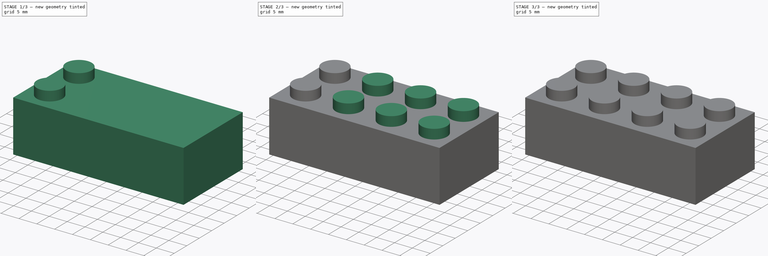
[diagram: build sequence overview — one tinted view per stage of 3, left to right]
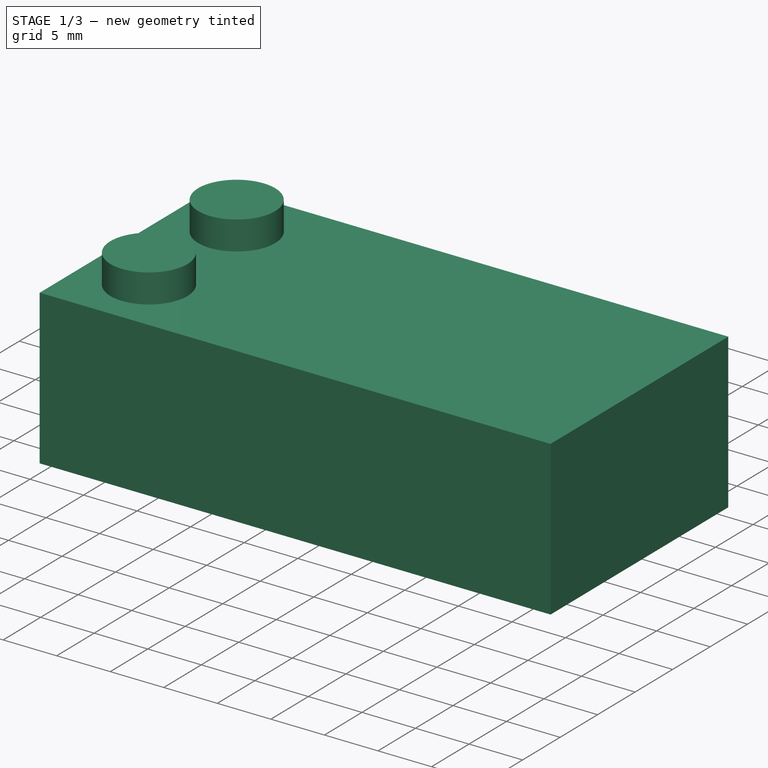
[diagram: stage 1 of 3 — iso view after this stage's code; geometry added in this stage tinted green]
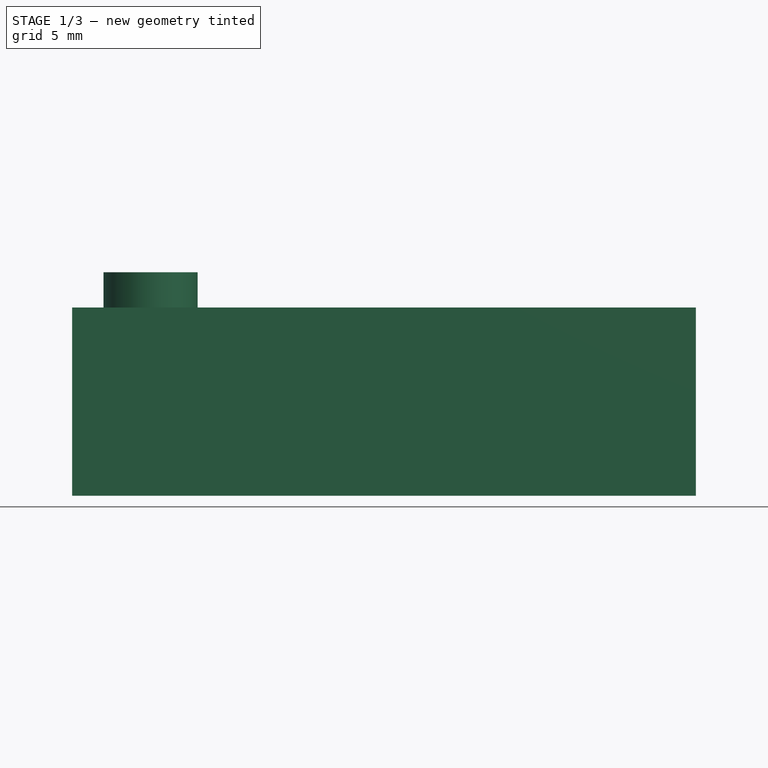
[diagram: stage 1 of 3 — front view after this stage's code; geometry added in this stage tinted green]
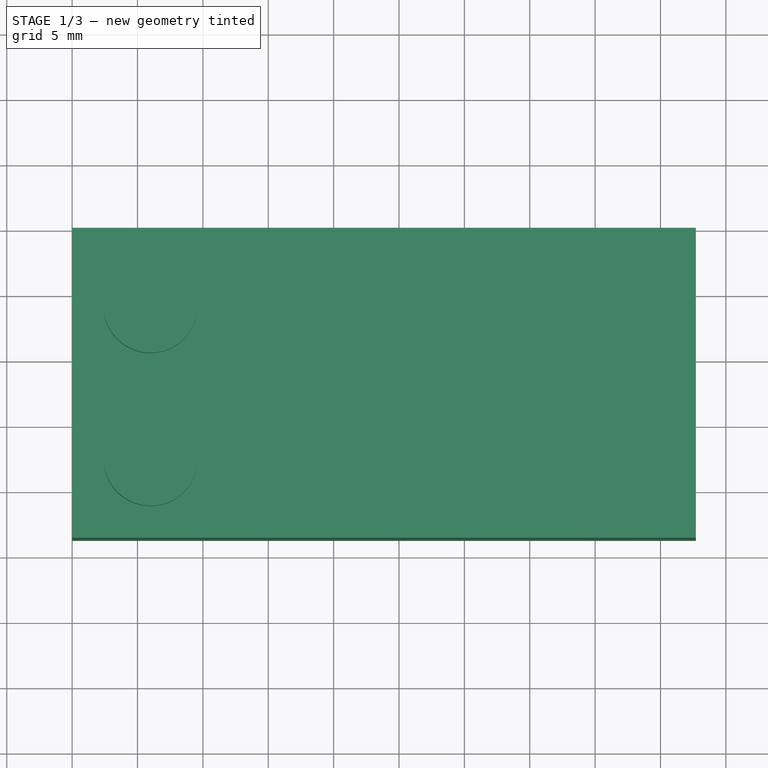
[diagram: stage 1 of 3 — top view after this stage's code; geometry added in this stage tinted green]
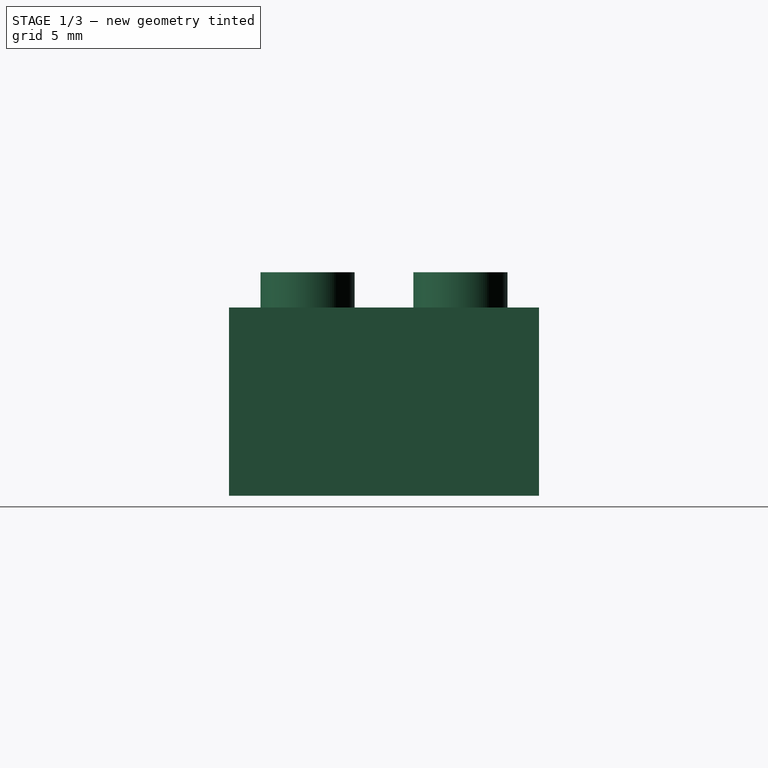
[diagram: stage 1 of 3 — right view after this stage's code; geometry added in this stage tinted green]
FCSTD DOCUMENT  (FreeCAD 0.17R13519 (Git))
Label: test002_lego
License: All rights reserved
LicenseURL: http://en.wikipedia.org/wiki/All_rights_reserved
objects: Sketcher::SketchObject×5, PartDesign::Pad×3, PartDesign::LinearPattern×3, PartDesign::Pocket×2, PartDesign::Body×1
note: 19 computed .brp shape members not serialized (recipe doc carries the construction recipe); baked Part::Feature solids carry a one-line shape summary decoded from their .brp

FEATURE [Sketcher::SketchObject] Sketch
  MapMode = 5
  Support = -> [XY_Plane]
  sketch-geometry (4):
    g0: LineSegment StartX=0 StartY=-23.7 StartZ=0 EndX=47.7 EndY=-23.7 EndZ=0
    g1: LineSegment StartX=47.7 StartY=-23.7 StartZ=0 EndX=47.7 EndY=0 EndZ=0
    g2: LineSegment StartX=47.7 StartY=0 StartZ=0 EndX=0 EndY=0 EndZ=0
    g3: LineSegment StartX=0 StartY=0 StartZ=0 EndX=0 EndY=-23.7 EndZ=0
  constraints (11):
    c: Coincident(g0,g1)
    c: Coincident(g1,g2)
    c: Coincident(g2,g3)
    c: Coincident(g3,g0)
    c: Horizontal(g0)
    c: Horizontal(g2)
    c: Vertical(g1)
    c: Vertical(g3)
    c: DistanceX(g2,g1) = 47.7
    c: DistanceY(g0,g2) = 23.7
    c: Coincident(g2,g-1)
FEATURE [PartDesign::Pad] Pad
  Length = 14.4
  Length2 = 100
  Profile = -> Sketch
  Type = 0
FEATURE [Sketcher::SketchObject] Sketch001
  ExternalGeometry = -> [Pad]
  MapMode = 5
  Support = -> [XY_Plane]
  sketch-geometry (8):
    g0: LineSegment StartX=1.8 StartY=-1.8 StartZ=0 EndX=45.9 EndY=-1.8 EndZ=0
    g1: LineSegment StartX=45.9 StartY=-1.8 StartZ=0 EndX=45.9 EndY=-21.9 EndZ=0
    g2: LineSegment StartX=45.9 StartY=-21.9 StartZ=0 EndX=1.8 EndY=-21.9 EndZ=0
    g3: LineSegment StartX=1.8 StartY=-21.9 StartZ=0 EndX=1.8 EndY=-1.8 EndZ=0
    g4: GeomPoint X=1.8 Y=-14.853 Z=0
    g5: GeomPoint X=13.9487 Y=-21.9 Z=0
    g6: GeomPoint X=13.1599 Y=-1.8 Z=0
    g7: GeomPoint X=45.9 Y=-21.9 Z=0
  constraints (16):
    c: Coincident(g0,g1)
    c: Coincident(g1,g2)
    c: Coincident(g2,g3)
    c: Coincident(g3,g0)
    c: Horizontal(g0)
    c: Horizontal(g2)
    c: Vertical(g1)
    c: Vertical(g3)
    c: PointOnObject(g4,g3)
    c: Distance(g4,g-4) = 1.8
    c: PointOnObject(g5,g2)
    c: PointOnObject(g6,g0)
    c: PointOnObject(g7,g1)
    c: Distance(g5,g-6) = 1.8
    c: Distance(g7,g-3) = 1.8
    c: Distance(g6,g-5) = 1.8
FEATURE [PartDesign::Pocket] Pocket
  BaseFeature = -> Pad
  Length = 12.6
  Length2 = 100
  Profile = -> Sketch001
  Reversed = true
  Type = 0
FEATURE [Sketcher::SketchObject] Sketch002
  ExternalGeometry = -> [Pocket]
  MapMode = 5
  Placement = pos=(0,0,14.4) rot=(0,0,1;0rad)
  Support = -> [Pocket]
  sketch-geometry (2):
    g0: Circle CenterX=6 CenterY=-6 CenterZ=0 NormalX=0 NormalY=0 NormalZ=1 AngleXU=0 Radius=3.6
    g1: Circle CenterX=6 CenterY=-17.7 CenterZ=0 NormalX=0 NormalY=0 NormalZ=1 AngleXU=0 Radius=3.6
  constraints (5):
    c: Radius(g1) = 3.6
    c: Equal(g1,g0)
    c: DistanceX(g0) = 6
    c: DistanceX(g1) = 6
    c: DistanceY(g0,g-1) = 6
FEATURE [PartDesign::Pad] Pad001
  BaseFeature = -> Pocket
  Length = 2.7
  Length2 = 100
  Profile = -> Sketch002
  Type = 0
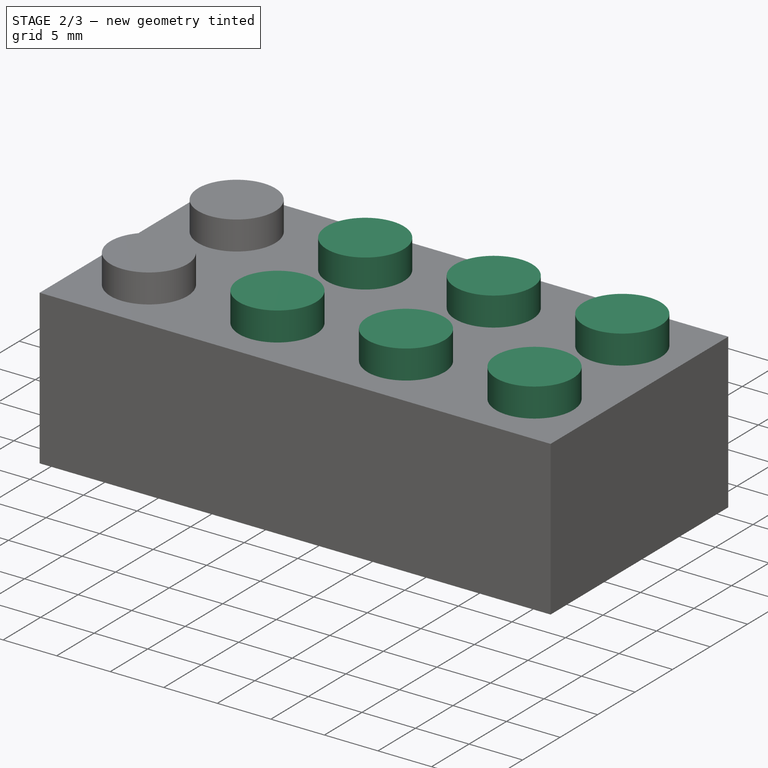
[diagram: stage 2 of 3 — iso view after this stage's code; geometry added in this stage tinted green]
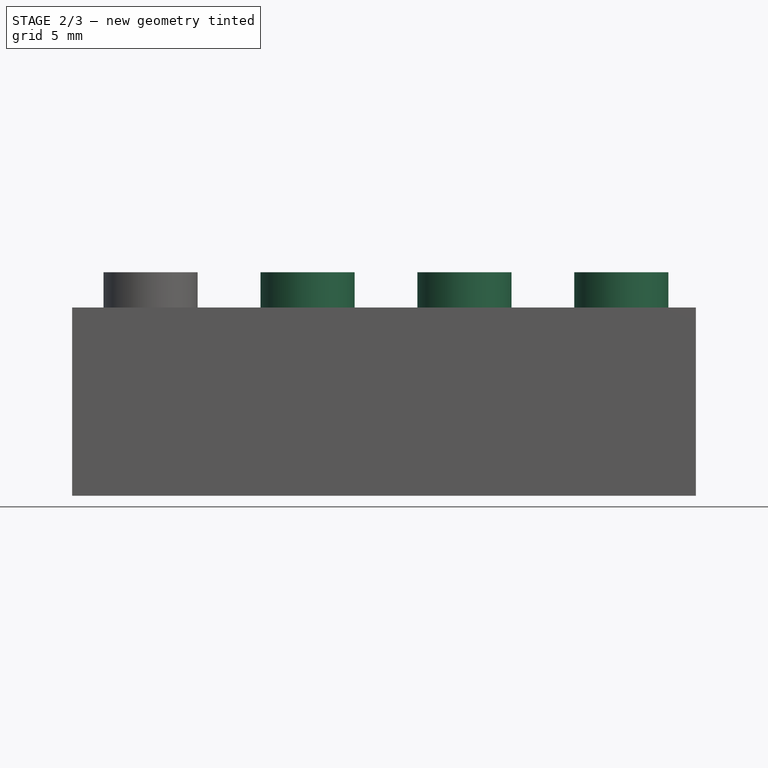
[diagram: stage 2 of 3 — front view after this stage's code; geometry added in this stage tinted green]
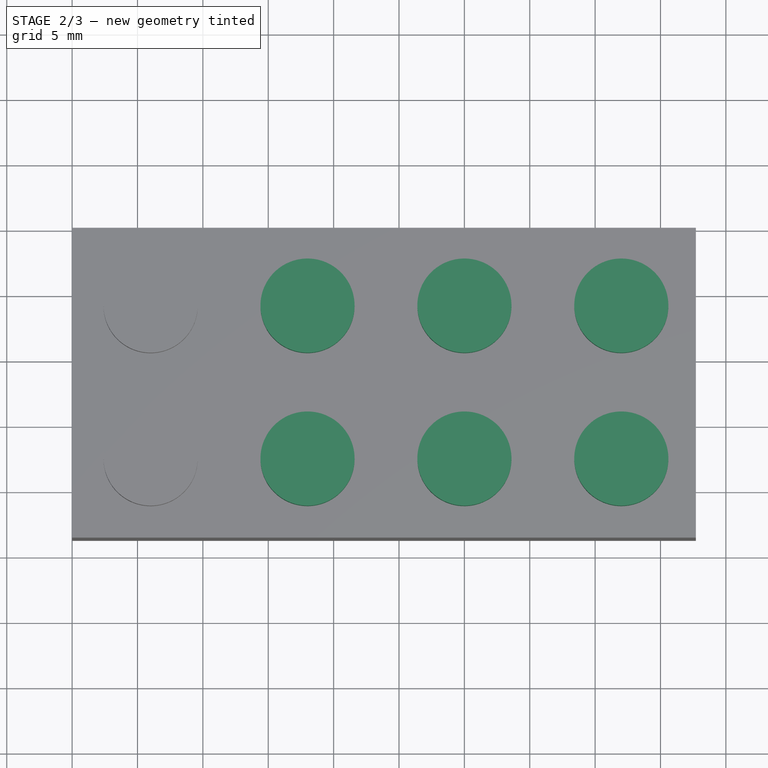
[diagram: stage 2 of 3 — top view after this stage's code; geometry added in this stage tinted green]
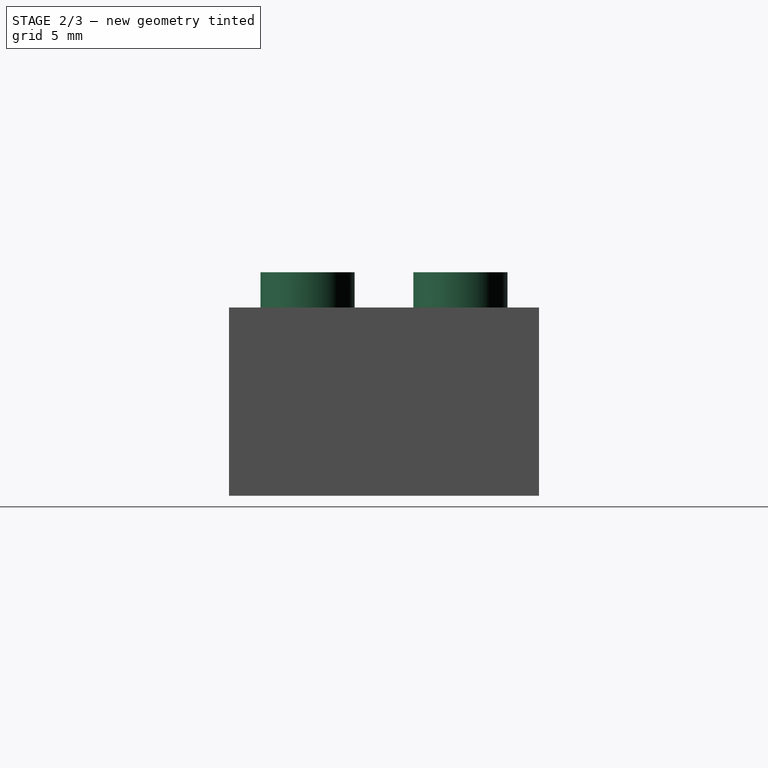
[diagram: stage 2 of 3 — right view after this stage's code; geometry added in this stage tinted green]
FEATURE [PartDesign::LinearPattern] LinearPattern
  BaseFeature = -> Pad001
  Direction = -> Sketch002 [H_Axis]
  Length = 36
  Occurrences = 4
  Originals = -> [Pad001]
FEATURE [Sketcher::SketchObject] Sketch003
  ExternalGeometry = -> [LinearPattern]
  MapMode = 5
  Placement = pos=(0,0,0) rot=(1,0,0;3.14159rad)
  Support = -> [LinearPattern]
  sketch-geometry (1):
    g0: Circle CenterX=12 CenterY=12 CenterZ=0 NormalX=0 NormalY=0 NormalZ=1 AngleXU=0 Radius=4.8825
  constraints (3):
    c: DistanceX(g-4,g0) = 10.2
    c: DistanceY(g-4,g0) = 10.2
    c: Radius(g0) = 4.8825
FEATURE [PartDesign::Pad] Pad002
  BaseFeature = -> LinearPattern
  Length = 12.6
  Length2 = 100
  Profile = -> Sketch003
  Reversed = true
  Type = 0
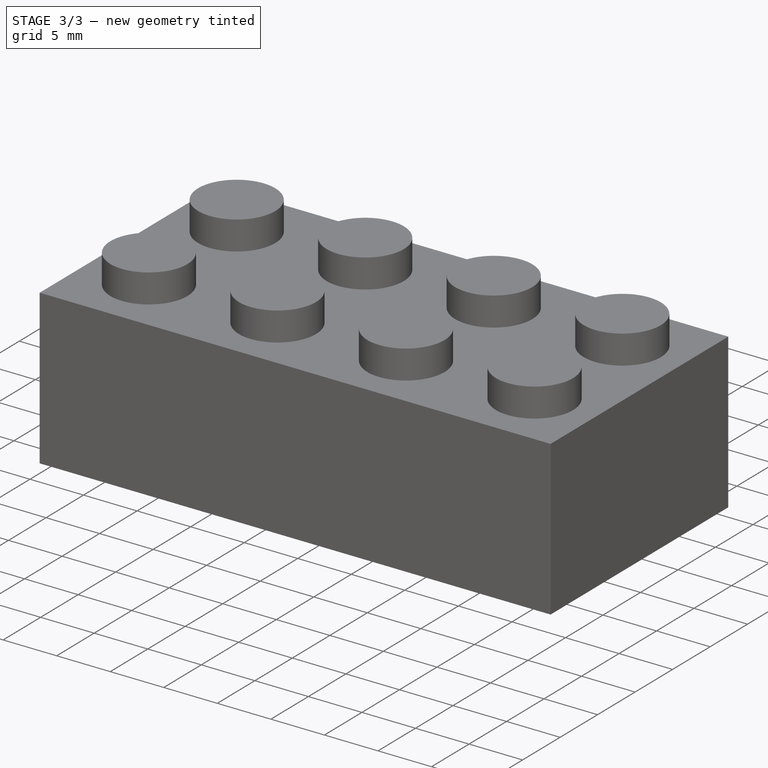
[diagram: stage 3 of 3 — iso view after this stage's code; geometry added in this stage tinted green]
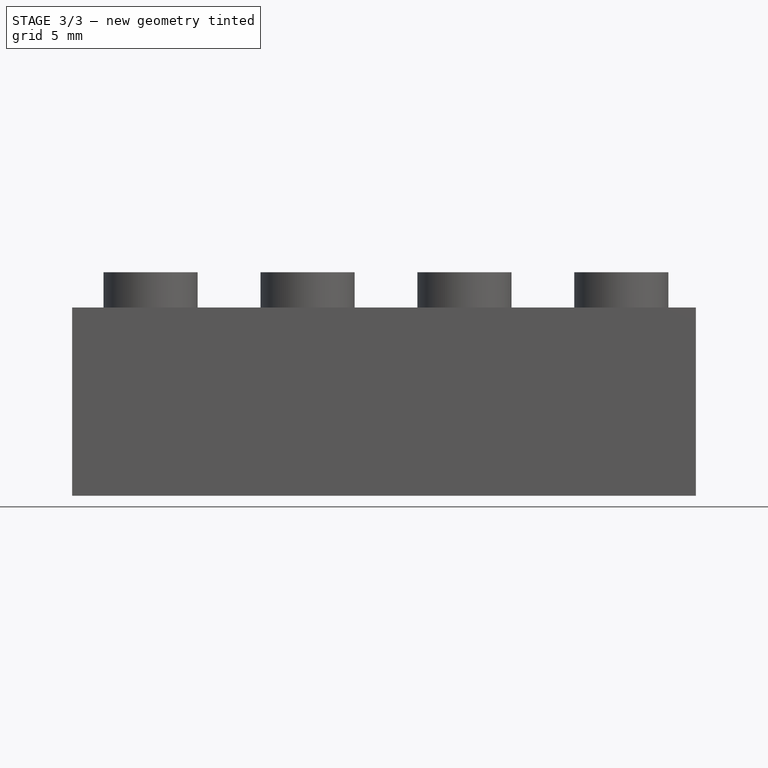
[diagram: stage 3 of 3 — front view after this stage's code; geometry added in this stage tinted green]
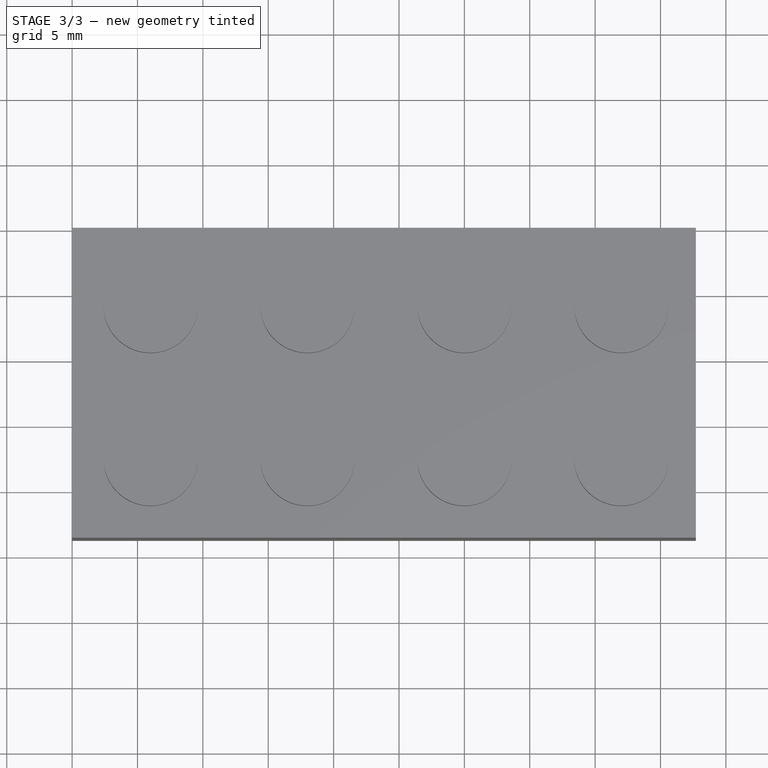
[diagram: stage 3 of 3 — top view after this stage's code; geometry added in this stage tinted green]
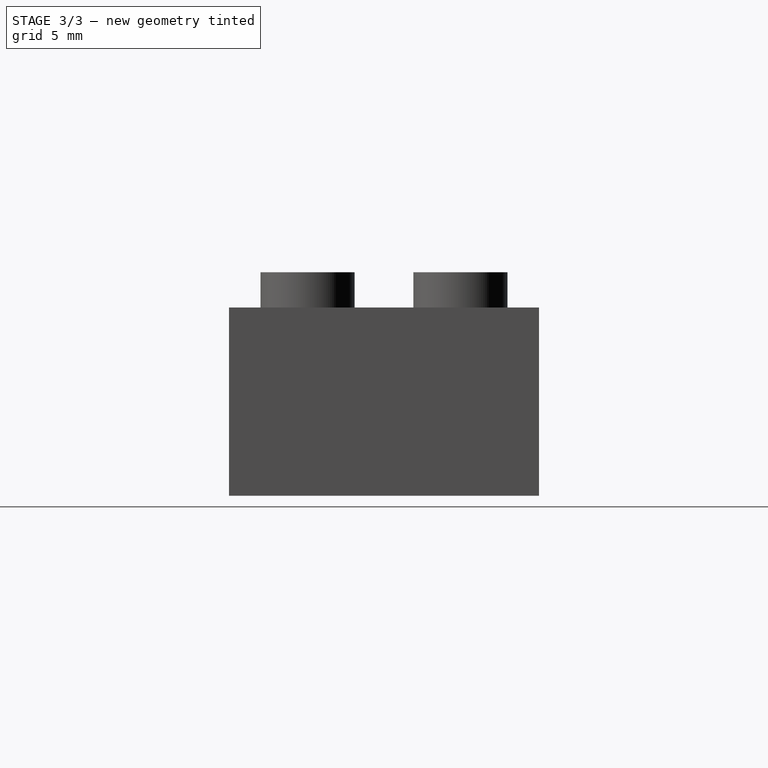
[diagram: stage 3 of 3 — right view after this stage's code; geometry added in this stage tinted green]
FEATURE [PartDesign::LinearPattern] LinearPattern001
  BaseFeature = -> Pad002
  Direction = -> Sketch003 [H_Axis]
  Length = 24
  Occurrences = 3
  Originals = -> [Pad002]
FEATURE [Sketcher::SketchObject] Sketch004
  ExternalGeometry = -> [LinearPattern001]
  MapMode = 5
  Placement = pos=(0,0,0) rot=(1,0,0;3.14159rad)
  Support = -> [LinearPattern001]
  sketch-geometry (1):
    g0: Circle CenterX=12 CenterY=12 CenterZ=0 NormalX=0 NormalY=0 NormalZ=1 AngleXU=0 Radius=3.6
  constraints (2):
    c: Coincident(g0,g-4)
    c: Radius(g0) = 3.6
FEATURE [PartDesign::Pocket] Pocket001
  BaseFeature = -> LinearPattern001
  Length = 12.6
  Length2 = 100
  Profile = -> Sketch004
  Type = 0
FEATURE [PartDesign::LinearPattern] LinearPattern002
  BaseFeature = -> Pocket001
  Direction = -> Sketch004 [H_Axis]
  Length = 24
  Occurrences = 3
  Originals = -> [Pocket001]
FEATURE [PartDesign::Body] Body
  Group = -> [Sketch,Pad,Sketch001,Pocket,Sketch002,Pad001,LinearPattern,Sketch003,Pad002,LinearPattern001,Sketch004,Pocket001,LinearPattern002]
  Origin = -> Origin
  Tip = -> LinearPattern002
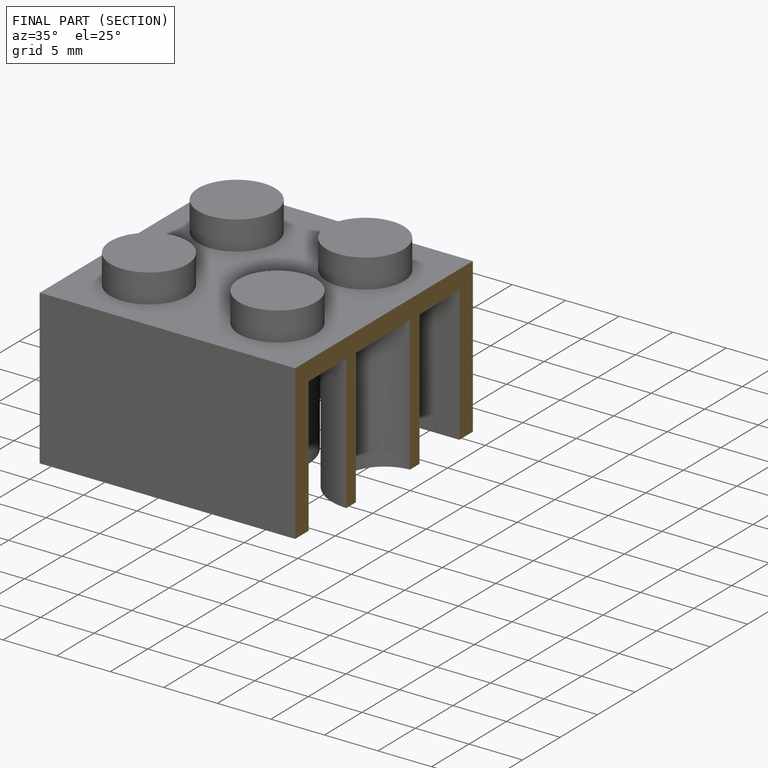
[diagram: finished part — half-section view (interior)]
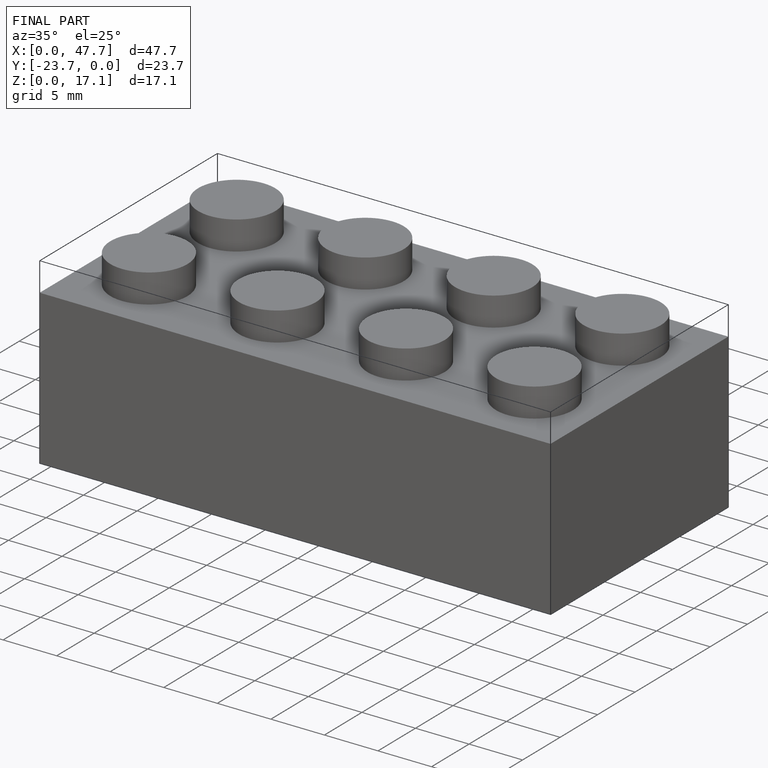
[diagram: finished part — iso view with bounding-box wireframe]
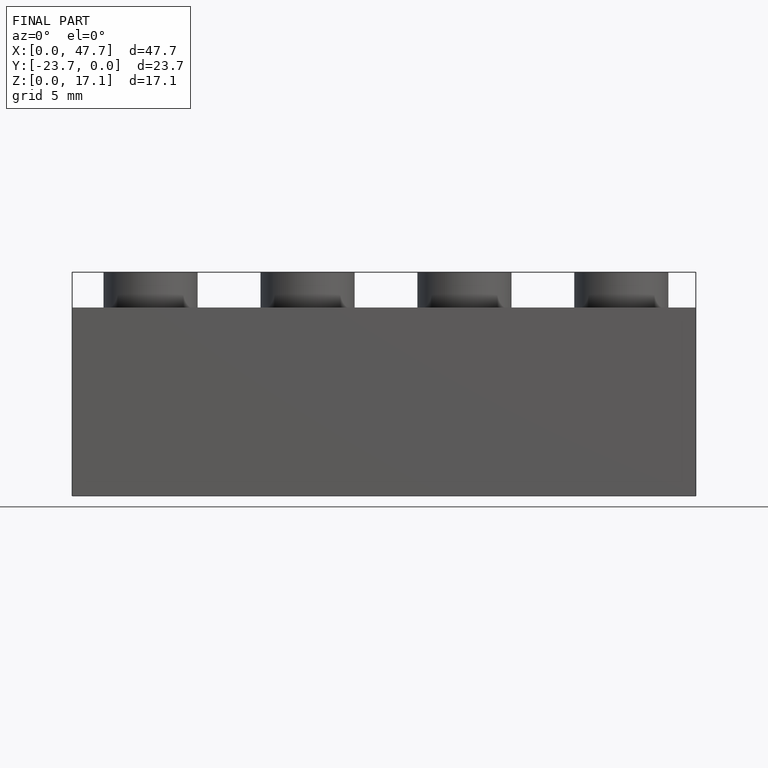
[diagram: finished part — front view with bounding-box wireframe]
